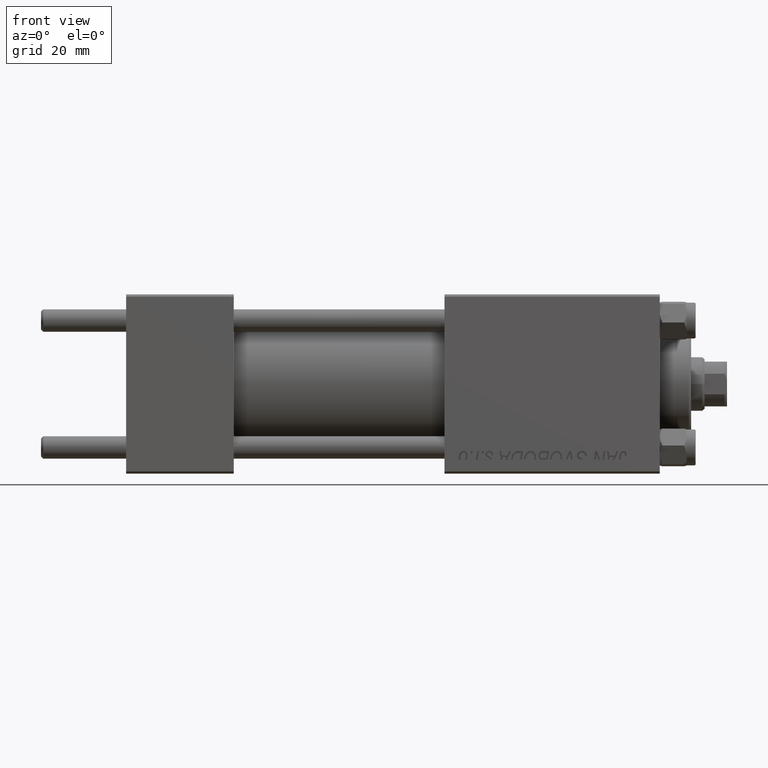
[diagram: clean part render]
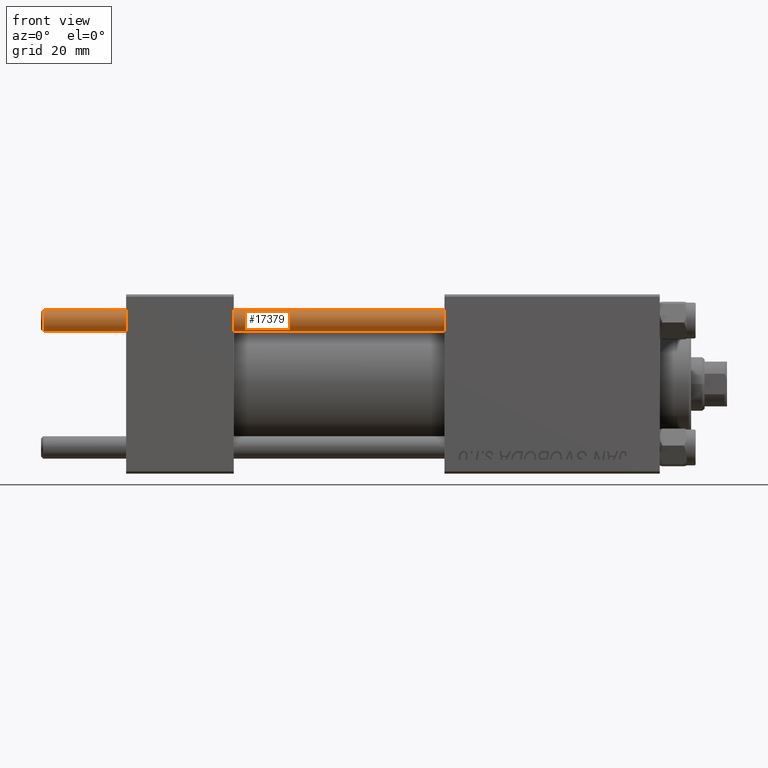
[diagram: same view with one face highlighted and labeled with its STEP entity id]
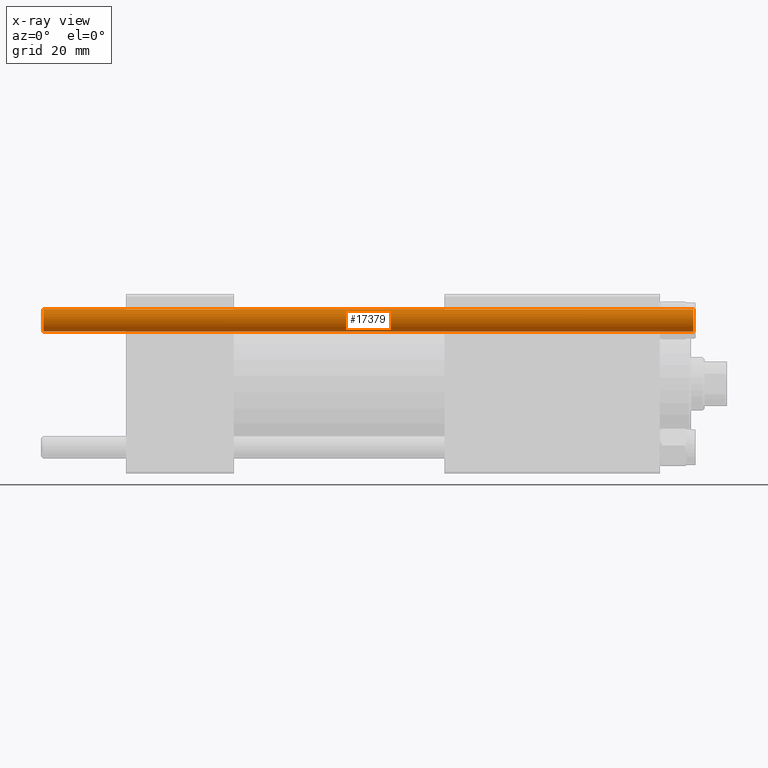
[diagram: x-ray of the same camera — body ghosted, the highlighted face saturated]
A machine part, front view. The second image highlights one B-rep face of the part: STEP entity #17379.
The next image is the same camera in x-ray: the body ghosted, the highlighted face saturated — about 0% of this face is hidden behind the body in this view.
In plain terms, the highlighted cylindrical surface (edge-blend (fillet) strip) has radius 2.5 mm, axis along (1, -0, 0).
Its self-contained STEP definition (entity closure, byte-faithful):
#72 = ORIENTED_EDGE ( 'NONE', *, *, #26123, .F. ) ;
#3904 = ORIENTED_EDGE ( 'NONE', *, *, #42348, .T. ) ;
#4197 = VECTOR ( 'NONE', #33631, 1000.000000000000000 ) ;
#5294 = DIRECTION ( 'NONE',  ( -1.000000000000000000, 0.000000000000000000, 0.000000000000000000 ) ) ;
#5689 = EDGE_LOOP ( 'NONE', ( #37948, #43388, #3904, #72 ) ) ;
#6055 = DIRECTION ( 'NONE',  ( -0.000000000000000000, -0.000000000000000000, -1.000000000000000000 ) ) ;
#6630 = VERTEX_POINT ( 'NONE', #27172 ) ;
#6870 = LINE ( 'NONE', #29122, #4197 ) ;
#9604 = CYLINDRICAL_SURFACE ( 'NONE', #32097, 2.500000000000000000 ) ;
#13810 = CARTESIAN_POINT ( 'NONE',  ( -2.500000000000000000, 0.000000000000000000, 0.5000000000000559552 ) ) ;
#16395 = CARTESIAN_POINT ( 'NONE',  ( 2.500000000000000000, 3.061616997868383141E-16, 145.5000000000000284 ) ) ;
#17379 = ADVANCED_FACE ( 'NONE', ( #40632 ), #9604, .T. ) ;
#18013 = CARTESIAN_POINT ( 'NONE',  ( 2.500000000000000000, 3.061616997868383141E-16, 146.0000000000000000 ) ) ;
#21683 = AXIS2_PLACEMENT_3D ( 'NONE', #45257, #32891, #29366 ) ;
#22367 = VERTEX_POINT ( 'NONE', #16395 ) ;
#25022 = CARTESIAN_POINT ( 'NONE',  ( 0.000000000000000000, 0.000000000000000000, 146.0000000000000000 ) ) ;
#26123 = EDGE_CURVE ( 'NONE', #6630, #27773, #6870, .T. ) ;
#27172 = CARTESIAN_POINT ( 'NONE',  ( -2.500000000000000000, 0.000000000000000000, 145.5000000000000284 ) ) ;
#27773 = VERTEX_POINT ( 'NONE', #13810 ) ;
#28661 = DIRECTION ( 'NONE',  ( -0.000000000000000000, -0.000000000000000000, 1.000000000000000000 ) ) ;
#29122 = CARTESIAN_POINT ( 'NONE',  ( -2.500000000000000000, 0.000000000000000000, 146.0000000000000000 ) ) ;
#29230 = EDGE_CURVE ( 'NONE', #22367, #49850, #41202, .T. ) ;
#29366 = DIRECTION ( 'NONE',  ( 1.000000000000000000, 0.000000000000000000, 0.000000000000000000 ) ) ;
#32097 = AXIS2_PLACEMENT_3D ( 'NONE', #25022, #6055, #5294 ) ;
#32891 = DIRECTION ( 'NONE',  ( 0.000000000000000000, 0.000000000000000000, -1.000000000000000000 ) ) ;
#33631 = DIRECTION ( 'NONE',  ( -0.000000000000000000, -0.000000000000000000, -1.000000000000000000 ) ) ;
#34181 = DIRECTION ( 'NONE',  ( 1.000000000000000000, 0.000000000000000000, 0.000000000000000000 ) ) ;
#36182 = DIRECTION ( 'NONE',  ( -0.000000000000000000, -0.000000000000000000, -1.000000000000000000 ) ) ;
#37948 = ORIENTED_EDGE ( 'NONE', *, *, #41980, .T. ) ;
#39645 = CARTESIAN_POINT ( 'NONE',  ( 2.500000000000000000, 3.061616997868383141E-16, 0.5000000000000559552 ) ) ;
#40632 = FACE_OUTER_BOUND ( 'NONE', #5689, .T. ) ;
#41202 = LINE ( 'NONE', #18013, #47028 ) ;
#41980 = EDGE_CURVE ( 'NONE', #6630, #22367, #43424, .T. ) ;
#42348 = EDGE_CURVE ( 'NONE', #49850, #27773, #45876, .T. ) ;
#43388 = ORIENTED_EDGE ( 'NONE', *, *, #29230, .T. ) ;
#43424 = CIRCLE ( 'NONE', #21683, 2.500000000000000000 ) ;
#43793 = CARTESIAN_POINT ( 'NONE',  ( 0.000000000000000000, 0.000000000000000000, 0.5000000000000559552 ) ) ;
#45257 = CARTESIAN_POINT ( 'NONE',  ( 0.000000000000000000, 0.000000000000000000, 145.5000000000000284 ) ) ;
#45876 = CIRCLE ( 'NONE', #49081, 2.500000000000000000 ) ;
#47028 = VECTOR ( 'NONE', #36182, 1000.000000000000000 ) ;
#49081 = AXIS2_PLACEMENT_3D ( 'NONE', #43793, #28661, #34181 ) ;
#49850 = VERTEX_POINT ( 'NONE', #39645 ) ;